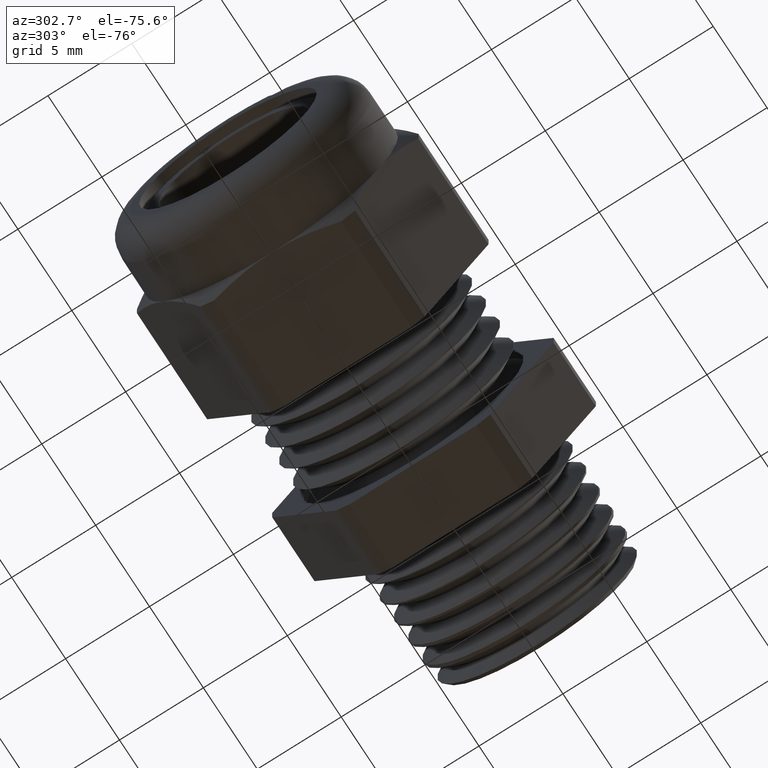
[diagram: clean part render]
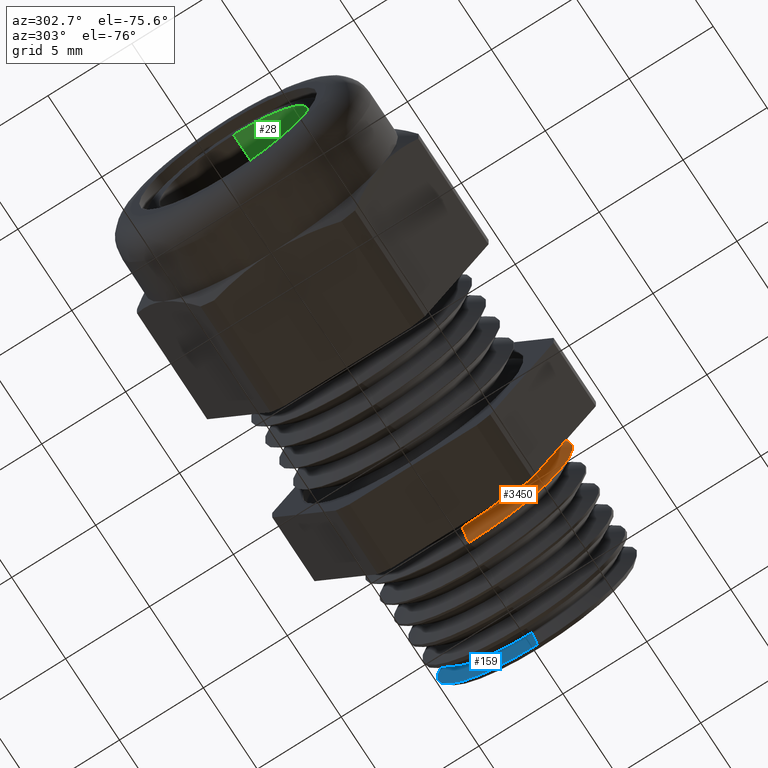
[diagram: same view with three faces highlighted in distinct colors, each labeled with its STEP entity id]
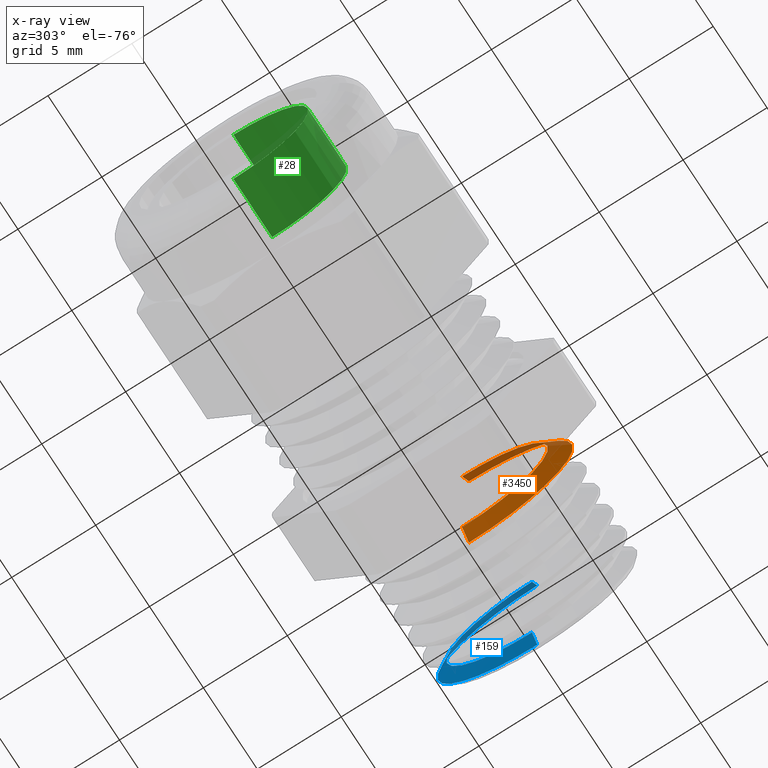
[diagram: x-ray of the same camera — body ghosted, the three highlighted faces saturated]
A machine part, auxiliary view with three faces highlighted in distinct colors.
The next image is the same camera in x-ray (body ghosted, the three faces saturated) — at least one of them is partly hidden behind the body in this view.
Their STEP definitions:

[orange] entity #3450 — the highlighted conical surface has half-angle 60 deg.
#131 = ORIENTED_EDGE ( 'NONE', *, *, #1191, .F. ) ;
#132 = ORIENTED_EDGE ( 'NONE', *, *, #265, .F. ) ;
#133 = EDGE_LOOP ( 'NONE', ( #132, #131, #3443, #3440 ) ) ;
#259 = EDGE_CURVE ( 'NONE', #287, #268, #1653, .T. ) ;
#265 = EDGE_CURVE ( 'NONE', #273, #278, #1646, .T. ) ;
#268 = VERTEX_POINT ( 'NONE', #1638 ) ;
#273 = VERTEX_POINT ( 'NONE', #1630 ) ;
#278 = VERTEX_POINT ( 'NONE', #1680 ) ;
#287 = VERTEX_POINT ( 'NONE', #1661 ) ;
#1191 = EDGE_CURVE ( 'NONE', #287, #273, #2989, .T. ) ;
#1264 = EDGE_CURVE ( 'NONE', #268, #278, #3113, .T. ) ;
#1630 = CARTESIAN_POINT ( 'NONE',  ( 0.02539245264900378400, 0.0000000000000000000, 0.2010189818831388000 ) ) ;
#1638 = CARTESIAN_POINT ( 'NONE',  ( 0.05002855120473132700, 2.984341249450275200E-017, -0.2436899562819328200 ) ) ;
#1639 = DIRECTION ( 'NONE',  ( 0.5000000000000008900, 1.060575238724906300E-016, 0.8660254037844380400 ) ) ;
#1640 = VECTOR ( 'NONE', #1639, 39.37007874015748100 ) ;
#1641 = CARTESIAN_POINT ( 'NONE',  ( 0.02539245264900378400, 2.461772527310457000E-017, 0.2010189818831388000 ) ) ;
#1646 = LINE ( 'NONE', #1641, #1640 ) ;
#1650 = DIRECTION ( 'NONE',  ( 0.5000000000000008900, 0.0000000000000000000, -0.8660254037844380400 ) ) ;
#1651 = VECTOR ( 'NONE', #1650, 39.37007874015748100 ) ;
#1652 = CARTESIAN_POINT ( 'NONE',  ( 0.02539245264900378400, 0.0000000000000000000, -0.2010189818831388000 ) ) ;
#1653 = LINE ( 'NONE', #1652, #1651 ) ;
#1661 = CARTESIAN_POINT ( 'NONE',  ( 0.02539245264900378400, 2.517725924883367600E-017, -0.2010189818831388000 ) ) ;
#1680 = CARTESIAN_POINT ( 'NONE',  ( 0.05002855120473132700, 0.0000000000000000000, 0.2436899562819328200 ) ) ;
#2985 = DIRECTION ( 'NONE',  ( 0.0000000000000000000, 0.0000000000000000000, 1.000000000000000000 ) ) ;
#2986 = DIRECTION ( 'NONE',  ( -1.000000000000000000, 0.0000000000000000000, 0.0000000000000000000 ) ) ;
#2987 = CARTESIAN_POINT ( 'NONE',  ( 0.02539245264900378400, 0.0000000000000000000, 0.0000000000000000000 ) ) ;
#2988 = AXIS2_PLACEMENT_3D ( 'NONE', #2987, #2986, #2985 ) ;
#2989 = CIRCLE ( 'NONE', #2988, 0.2010189818831388000 ) ;
#3109 = DIRECTION ( 'NONE',  ( 0.0000000000000000000, 0.0000000000000000000, 1.000000000000000000 ) ) ;
#3110 = DIRECTION ( 'NONE',  ( -1.000000000000000000, 0.0000000000000000000, 0.0000000000000000000 ) ) ;
#3111 = CARTESIAN_POINT ( 'NONE',  ( 0.05002855120473132700, 0.0000000000000000000, 0.0000000000000000000 ) ) ;
#3112 = AXIS2_PLACEMENT_3D ( 'NONE', #3111, #3110, #3109 ) ;
#3113 = CIRCLE ( 'NONE', #3112, 0.2436899562819330500 ) ;
#3323 = DIRECTION ( 'NONE',  ( 0.0000000000000000000, 0.0000000000000000000, -1.000000000000000000 ) ) ;
#3324 = DIRECTION ( 'NONE',  ( 1.000000000000000000, 0.0000000000000000000, 0.0000000000000000000 ) ) ;
#3325 = CARTESIAN_POINT ( 'NONE',  ( 0.02539245264900378400, 0.0000000000000000000, 0.0000000000000000000 ) ) ;
#3326 = AXIS2_PLACEMENT_3D ( 'NONE', #3325, #3324, #3323 ) ;
#3327 = CONICAL_SURFACE ( 'NONE', #3326, 0.2010189818831388000, 1.047197551196596700 ) ;
#3328 = FACE_OUTER_BOUND ( 'NONE', #133, .T. ) ;
#3440 = ORIENTED_EDGE ( 'NONE', *, *, #1264, .T. ) ;
#3443 = ORIENTED_EDGE ( 'NONE', *, *, #259, .T. ) ;
#3450 = ADVANCED_FACE ( 'NONE', ( #3328 ), #3327, .T. ) ;

[blue] entity #159 — the highlighted conical surface has half-angle 60 deg.
#143 = VERTEX_POINT ( 'NONE', #1375 ) ;
#153 = ORIENTED_EDGE ( 'NONE', *, *, #154, .T. ) ;
#154 = EDGE_CURVE ( 'NONE', #163, #155, #1420, .T. ) ;
#155 = VERTEX_POINT ( 'NONE', #1416 ) ;
#156 = EDGE_LOOP ( 'NONE', ( #160, #153, #215, #213 ) ) ;
#157 = VERTEX_POINT ( 'NONE', #1415 ) ;
#159 = ADVANCED_FACE ( 'NONE', ( #1407 ), #1406, .T. ) ;
#160 = ORIENTED_EDGE ( 'NONE', *, *, #162, .F. ) ;
#162 = EDGE_CURVE ( 'NONE', #163, #157, #1461, .T. ) ;
#163 = VERTEX_POINT ( 'NONE', #1456 ) ;
#208 = EDGE_CURVE ( 'NONE', #143, #155, #1495, .T. ) ;
#209 = EDGE_CURVE ( 'NONE', #157, #143, #1555, .T. ) ;
#213 = ORIENTED_EDGE ( 'NONE', *, *, #209, .F. ) ;
#215 = ORIENTED_EDGE ( 'NONE', *, *, #208, .F. ) ;
#1375 = CARTESIAN_POINT ( 'NONE',  ( 0.2997811586110814000, 2.873036156396405500E-017, -0.2346012057024707000 ) ) ;
#1402 = DIRECTION ( 'NONE',  ( 0.0000000000000000000, 0.0000000000000000000, -1.000000000000000000 ) ) ;
#1403 = DIRECTION ( 'NONE',  ( 1.000000000000000000, 0.0000000000000000000, 0.0000000000000000000 ) ) ;
#1404 = AXIS2_PLACEMENT_3D ( 'NONE', #1412, #1403, #1402 ) ;
#1406 = CONICAL_SURFACE ( 'NONE', #1404, 0.2010189818831388000, 1.047197551196596700 ) ;
#1407 = FACE_OUTER_BOUND ( 'NONE', #156, .T. ) ;
#1412 = CARTESIAN_POINT ( 'NONE',  ( 0.2803924526490038100, 0.0000000000000000000, 0.0000000000000000000 ) ) ;
#1415 = CARTESIAN_POINT ( 'NONE',  ( 0.2803924526490038100, 2.689563606499657500E-017, -0.2010189818831388000 ) ) ;
#1416 = CARTESIAN_POINT ( 'NONE',  ( 0.2997811586110814000, 0.0000000000000000000, 0.2346012057024707000 ) ) ;
#1417 = DIRECTION ( 'NONE',  ( 0.5000000000000008900, 1.060575238724906300E-016, 0.8660254037844380400 ) ) ;
#1418 = VECTOR ( 'NONE', #1417, 39.37007874015748100 ) ;
#1419 = CARTESIAN_POINT ( 'NONE',  ( 0.2803924526490038100, 2.461772527310457000E-017, 0.2010189818831388000 ) ) ;
#1420 = LINE ( 'NONE', #1419, #1418 ) ;
#1456 = CARTESIAN_POINT ( 'NONE',  ( 0.2803924526490038100, 0.0000000000000000000, 0.2010189818831388000 ) ) ;
#1457 = DIRECTION ( 'NONE',  ( 0.0000000000000000000, 0.0000000000000000000, 1.000000000000000000 ) ) ;
#1458 = DIRECTION ( 'NONE',  ( -1.000000000000000000, 0.0000000000000000000, 0.0000000000000000000 ) ) ;
#1459 = CARTESIAN_POINT ( 'NONE',  ( 0.2803924526490038100, 0.0000000000000000000, 0.0000000000000000000 ) ) ;
#1460 = AXIS2_PLACEMENT_3D ( 'NONE', #1459, #1458, #1457 ) ;
#1461 = CIRCLE ( 'NONE', #1460, 0.2010189818831388000 ) ;
#1492 = DIRECTION ( 'NONE',  ( 0.0000000000000000000, 0.0000000000000000000, -1.000000000000000000 ) ) ;
#1493 = DIRECTION ( 'NONE',  ( 1.000000000000000000, 0.0000000000000000000, 0.0000000000000000000 ) ) ;
#1494 = AXIS2_PLACEMENT_3D ( 'NONE', #1501, #1493, #1492 ) ;
#1495 = CIRCLE ( 'NONE', #1494, 0.2346012057024707000 ) ;
#1501 = CARTESIAN_POINT ( 'NONE',  ( 0.2997811586110814000, 0.0000000000000000000, 0.0000000000000000000 ) ) ;
#1552 = DIRECTION ( 'NONE',  ( 0.5000000000000008900, 0.0000000000000000000, -0.8660254037844380400 ) ) ;
#1553 = VECTOR ( 'NONE', #1552, 39.37007874015748100 ) ;
#1554 = CARTESIAN_POINT ( 'NONE',  ( 0.2803924526490038100, 0.0000000000000000000, -0.2010189818831388000 ) ) ;
#1555 = LINE ( 'NONE', #1554, #1553 ) ;

[green] entity #28 — the highlighted cylindrical surface (partial cylindrical patch) has radius 4.445 mm, axis along (1, 0, 0).
#17 = ORIENTED_EDGE ( 'NONE', *, *, #18, .F. ) ;
#18 = EDGE_CURVE ( 'NONE', #30, #34, #616, .T. ) ;
#20 = ORIENTED_EDGE ( 'NONE', *, *, #25, .F. ) ;
#25 = EDGE_CURVE ( 'NONE', #34, #29, #601, .T. ) ;
#28 = ADVANCED_FACE ( 'NONE', ( #662 ), #655, .F. ) ;
#29 = VERTEX_POINT ( 'NONE', #651 ) ;
#30 = VERTEX_POINT ( 'NONE', #650 ) ;
#31 = ORIENTED_EDGE ( 'NONE', *, *, #64, .T. ) ;
#34 = VERTEX_POINT ( 'NONE', #648 ) ;
#44 = EDGE_LOOP ( 'NONE', ( #17, #31, #63, #20 ) ) ;
#57 = EDGE_CURVE ( 'NONE', #60, #29, #726, .T. ) ;
#60 = VERTEX_POINT ( 'NONE', #721 ) ;
#63 = ORIENTED_EDGE ( 'NONE', *, *, #57, .T. ) ;
#64 = EDGE_CURVE ( 'NONE', #30, #60, #715, .T. ) ;
#598 = DIRECTION ( 'NONE',  ( 1.000000000000000000, 0.0000000000000000000, 0.0000000000000000000 ) ) ;
#599 = VECTOR ( 'NONE', #598, 39.37007874015748100 ) ;
#600 = CARTESIAN_POINT ( 'NONE',  ( 0.3423310023310022200, 0.0000000000000000000, -0.1750000000000000400 ) ) ;
#601 = LINE ( 'NONE', #600, #599 ) ;
#612 = DIRECTION ( 'NONE',  ( 0.0000000000000000000, 0.0000000000000000000, -1.000000000000000000 ) ) ;
#613 = DIRECTION ( 'NONE',  ( 1.000000000000000000, 0.0000000000000000000, 0.0000000000000000000 ) ) ;
#614 = CARTESIAN_POINT ( 'NONE',  ( -0.8099999999999999400, 0.0000000000000000000, 0.0000000000000000000 ) ) ;
#615 = AXIS2_PLACEMENT_3D ( 'NONE', #614, #613, #612 ) ;
#616 = CIRCLE ( 'NONE', #615, 0.1750000000000000400 ) ;
#648 = CARTESIAN_POINT ( 'NONE',  ( -0.8099999999999999400, 0.0000000000000000000, -0.1750000000000000400 ) ) ;
#650 = CARTESIAN_POINT ( 'NONE',  ( -0.8099999999999999400, 2.143131898507868600E-017, 0.1750000000000000400 ) ) ;
#651 = CARTESIAN_POINT ( 'NONE',  ( -0.6687500000000000700, 0.0000000000000000000, -0.1750000000000000400 ) ) ;
#652 = DIRECTION ( 'NONE',  ( 0.0000000000000000000, 0.0000000000000000000, -1.000000000000000000 ) ) ;
#653 = DIRECTION ( 'NONE',  ( 1.000000000000000000, 0.0000000000000000000, 0.0000000000000000000 ) ) ;
#654 = AXIS2_PLACEMENT_3D ( 'NONE', #656, #653, #652 ) ;
#655 = CYLINDRICAL_SURFACE ( 'NONE', #654, 0.1750000000000000400 ) ;
#656 = CARTESIAN_POINT ( 'NONE',  ( 0.3423310023310022200, 0.0000000000000000000, 0.0000000000000000000 ) ) ;
#662 = FACE_OUTER_BOUND ( 'NONE', #44, .T. ) ;
#663 = CARTESIAN_POINT ( 'NONE',  ( -0.6687500000000000700, 0.0000000000000000000, 0.0000000000000000000 ) ) ;
#712 = DIRECTION ( 'NONE',  ( 1.000000000000000000, 0.0000000000000000000, 0.0000000000000000000 ) ) ;
#713 = VECTOR ( 'NONE', #712, 39.37007874015748100 ) ;
#714 = CARTESIAN_POINT ( 'NONE',  ( 0.3423310023310022200, 2.143131898507868600E-017, 0.1750000000000000400 ) ) ;
#715 = LINE ( 'NONE', #714, #713 ) ;
#721 = CARTESIAN_POINT ( 'NONE',  ( -0.6687500000000000700, 2.143131898507868600E-017, 0.1750000000000000400 ) ) ;
#723 = DIRECTION ( 'NONE',  ( 0.0000000000000000000, 0.0000000000000000000, -1.000000000000000000 ) ) ;
#724 = DIRECTION ( 'NONE',  ( 1.000000000000000000, 0.0000000000000000000, 0.0000000000000000000 ) ) ;
#725 = AXIS2_PLACEMENT_3D ( 'NONE', #663, #724, #723 ) ;
#726 = CIRCLE ( 'NONE', #725, 0.1750000000000000400 ) ;